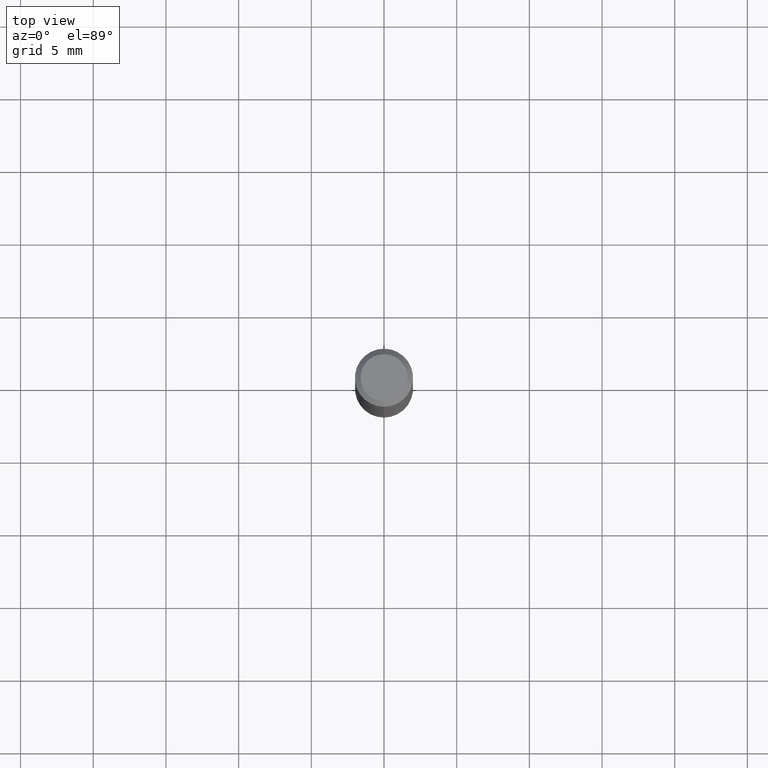
[diagram: clean part render]
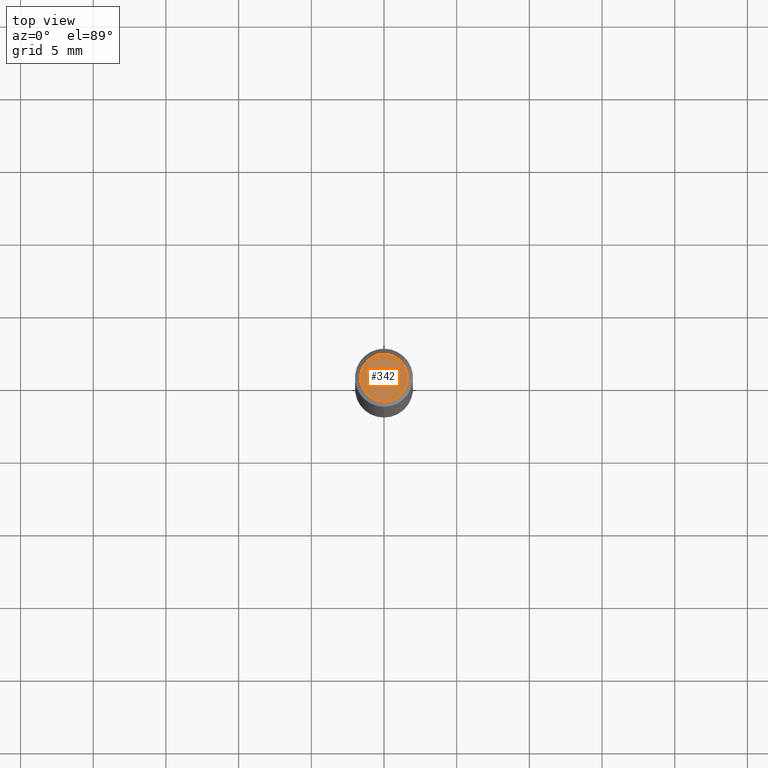
[diagram: same view with one face highlighted and labeled with its STEP entity id]
A machine part, top view. The second image highlights one B-rep face of the part: STEP entity #342.
In plain terms, the highlighted planar face has unit normal (0, -0, -1).
Its self-contained STEP definition (entity closure, byte-faithful):
#62 = CARTESIAN_POINT ( 'NONE',  ( 4.451638707024993845E-16, 0.06375000000000000111, -1.050331595760533067E-16 ) ) ;
#79 = VERTEX_POINT ( 'NONE', #410 ) ;
#84 = CIRCLE ( 'NONE', #226, 0.06375000000000000111 ) ;
#109 = AXIS2_PLACEMENT_3D ( 'NONE', #62, #181, #314 ) ;
#138 = DIRECTION ( 'NONE',  ( -2.445460784129690080E-29, 3.491492826883132215E-15, 1.000000000000000000 ) ) ;
#140 = DIRECTION ( 'NONE',  ( -2.445460784129690080E-29, 3.491492826883132215E-15, 1.000000000000000000 ) ) ;
#145 = CARTESIAN_POINT ( 'NONE',  ( -5.749254246891852825E-45, 8.208465289331636432E-31, 2.350990162754927736E-16 ) ) ;
#181 = DIRECTION ( 'NONE',  ( 2.445460784129689239E-29, -3.491492826883132609E-15, -1.000000000000000000 ) ) ;
#222 = FACE_OUTER_BOUND ( 'NONE', #429, .T. ) ;
#226 = AXIS2_PLACEMENT_3D ( 'NONE', #145, #138, #262 ) ;
#253 = AXIS2_PLACEMENT_3D ( 'NONE', #424, #140, #341 ) ;
#258 = EDGE_CURVE ( 'NONE', #469, #79, #84, .T. ) ;
#262 = DIRECTION ( 'NONE',  ( -6.982962677686264344E-15, -1.000000000000000000, 3.491492826883131820E-15 ) ) ;
#263 = PLANE ( 'NONE',  #109 ) ;
#280 = EDGE_CURVE ( 'NONE', #79, #469, #380, .T. ) ;
#314 = DIRECTION ( 'NONE',  ( 6.982962677686265922E-15, 1.000000000000000000, -3.491492826883132609E-15 ) ) ;
#341 = DIRECTION ( 'NONE',  ( -6.982962677686264344E-15, -1.000000000000000000, 3.491492826883131820E-15 ) ) ;
#342 = ADVANCED_FACE ( 'NONE', ( #222 ), #263, .F. ) ;
#380 = CIRCLE ( 'NONE', #253, 0.06375000000000000111 ) ;
#399 = ORIENTED_EDGE ( 'NONE', *, *, #280, .T. ) ;
#410 = CARTESIAN_POINT ( 'NONE',  ( -4.888104823412213911E-16, -0.06375000000000000111, 4.576816839892924424E-16 ) ) ;
#424 = CARTESIAN_POINT ( 'NONE',  ( -5.749254246891852825E-45, 8.208465289331636432E-31, 2.350990162754927736E-16 ) ) ;
#429 = EDGE_LOOP ( 'NONE', ( #458, #399 ) ) ;
#458 = ORIENTED_EDGE ( 'NONE', *, *, #258, .T. ) ;
#466 = CARTESIAN_POINT ( 'NONE',  ( 4.975360907851465623E-16, 0.06375000000000000111, 1.251634856169309859E-17 ) ) ;
#469 = VERTEX_POINT ( 'NONE', #466 ) ;